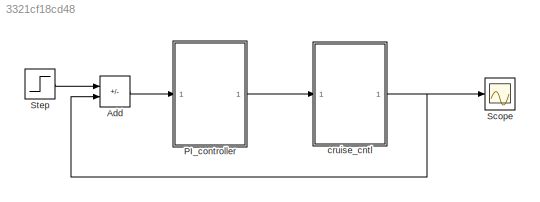
MODEL slx_3321cf18cd48
KIND model
CONFIG AbsTol = auto
CONFIG EnableMultiTasking = off
CONFIG FixedStep = auto
CONFIG MaxStep = auto
CONFIG MinStep = auto
CONFIG RelTol = 1e-3
CONFIG SampleTimeConstraint = Unconstrained
CONFIG SolverName = VariableStepAuto
CONFIG StartTime = 0.0
CONFIG StopTime = 10
BLOCK [Sum] Add
  IconShape = rectangular
  Inputs = +-
  Ports = [2, 1]
BLOCK [ModelReference] PI_controller
  ModelNameDialog = PI_controller
  ModelReferenceVersion = 1.6
  Ports = [1, 1]
BLOCK [Scope] Scope
  Floating = off
  NumInputPorts = 1
  Ports = [1]
  ScopeSpecificationString = Simulink.scopes.TimeScopeBlockCfg('CurrentConfiguration', extmgr.ConfigurationSet(extmgr.Configuration('Core','General UI',true),extmgr.Configuration('Core','Source UI',true),extmgr.Configuration('Sources','WiredSimulink',true),extmgr.Configuration('Visuals','Time Domain',true,'SerializedDisplays',{struct('MinYLimReal','-1.24958','MaxYLimReal','11.24623','YLabelReal','','MinYLimMag','0.00000','Max...<+1335ch>
BLOCK [Step] Step
  After = u
  SampleTime = 0
  Time = 0
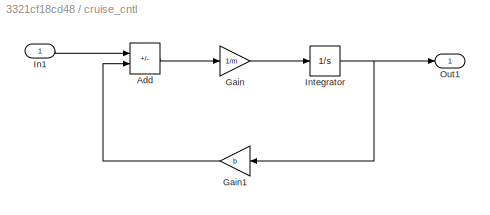
BLOCK [SubSystem] cruise_cntl
  Ports = [1, 1]
  RequestExecContextInheritance = off
BLOCK [Sum] cruise_cntl/Add
  IconShape = rectangular
  Inputs = +-
  Ports = [2, 1]
BLOCK [Gain] cruise_cntl/Gain
  Gain = 1/m
BLOCK [Gain] cruise_cntl/Gain1
  Gain = b
  NameLocation = top
BLOCK [Inport] cruise_cntl/In1
BLOCK [Integrator] cruise_cntl/Integrator
  Ports = [1, 1]
BLOCK [Outport] cruise_cntl/Out1
LINE Add:1 -> PI_controller:1
LINE PI_controller:1 -> cruise_cntl:1
LINE Step:1 -> Add:1
LINE cruise_cntl/Add:1 -> cruise_cntl/Gain:1
LINE cruise_cntl/Gain1:1 -> cruise_cntl/Add:2
LINE cruise_cntl/Gain:1 -> cruise_cntl/Integrator:1
LINE cruise_cntl/In1:1 -> cruise_cntl/Add:1
NET cruise_cntl/Integrator:1 -> cruise_cntl/Gain1:1, cruise_cntl/Out1:1
NET cruise_cntl:1 -> Add:2, Scope:1
note: NET lines group one-source signal fan-out (src -> all destinations, sorted); 1:1 wires keep LINE
